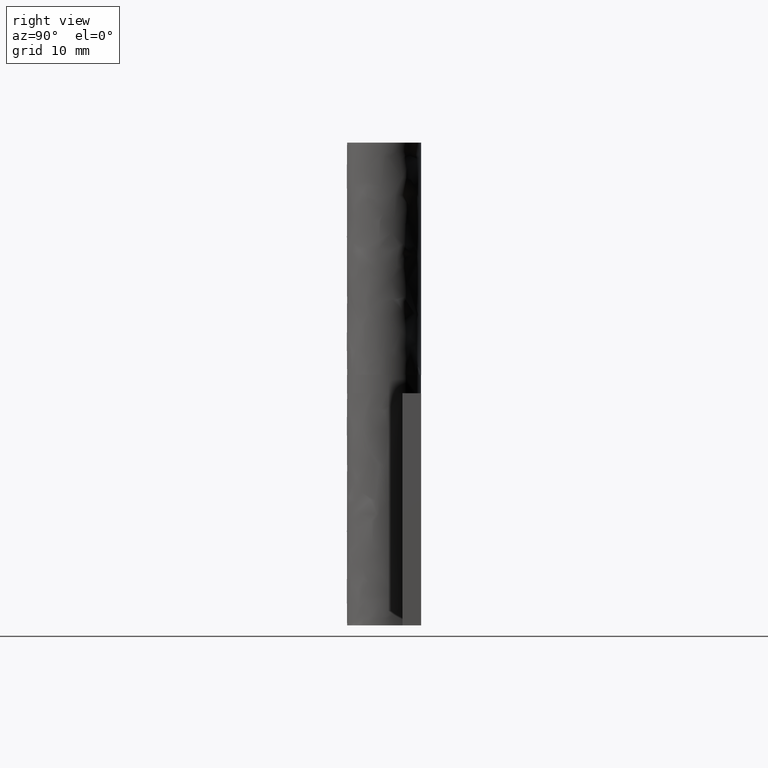
[diagram: clean part render]
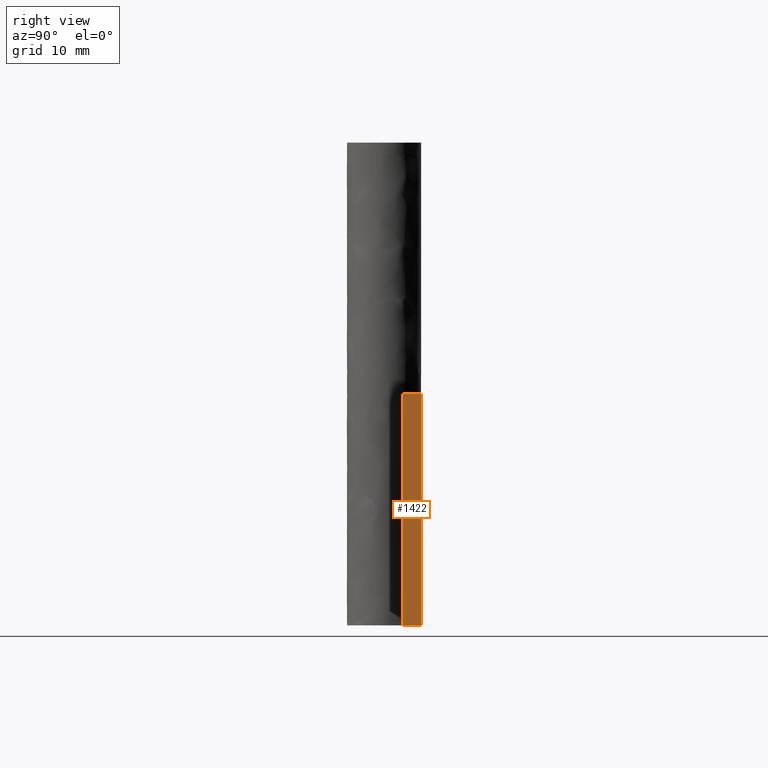
[diagram: same view with one face highlighted and labeled with its STEP entity id]
A machine part, right view. The second image highlights one B-rep face of the part: STEP entity #1422.
In plain terms, the highlighted face is a freeform B-spline surface patch.
Its self-contained STEP definition (entity closure, byte-faithful):
#1219=CARTESIAN_POINT('',(43.999984999999803,3.0,0.0));
#1220=VERTEX_POINT('',#1219);
#1249=CARTESIAN_POINT('',(43.999984999999803,6.0,0.0));
#1250=VERTEX_POINT('',#1249);
#1256=CARTESIAN_POINT('',(43.999984999999803,6.0,0.0));
#1257=CARTESIAN_POINT('',(43.999984999999803,3.0,0.0));
#1258=QUASI_UNIFORM_CURVE('',1,(#1256,#1257),.UNSPECIFIED.,.F.,.U.);
#1259=EDGE_CURVE('',#1250,#1220,#1258,.T.);
#1271=CARTESIAN_POINT('',(43.999984999999803,6.0,37.500000000000000));
#1272=VERTEX_POINT('',#1271);
#1327=CARTESIAN_POINT('',(43.999984999999803,3.0,37.500000000000000));
#1328=VERTEX_POINT('',#1327);
#1334=CARTESIAN_POINT('',(43.999984999999803,6.0,37.500000000000000));
#1335=CARTESIAN_POINT('',(43.999984999999803,3.0,37.500000000000000));
#1336=QUASI_UNIFORM_CURVE('',1,(#1334,#1335),.UNSPECIFIED.,.F.,.U.);
#1337=EDGE_CURVE('',#1272,#1328,#1336,.T.);
#1392=CARTESIAN_POINT('',(43.999984999999803,3.0,37.500000000000000));
#1393=CARTESIAN_POINT('',(43.999984999999803,3.0,0.0));
#1394=QUASI_UNIFORM_CURVE('',1,(#1392,#1393),.UNSPECIFIED.,.F.,.U.);
#1395=EDGE_CURVE('',#1328,#1220,#1394,.T.);
#1407=CARTESIAN_POINT('',(43.999984999999803,2.850150005814581,39.373124927317733));
#1408=CARTESIAN_POINT('',(43.999984999999803,2.850150005814581,-1.873125933146104));
#1409=CARTESIAN_POINT('',(43.999984999999803,6.149850074651689,39.373124927317733));
#1410=CARTESIAN_POINT('',(43.999984999999803,6.149850074651689,-1.873125933146104));
#1411=B_SPLINE_SURFACE_WITH_KNOTS('',1,1,((#1407,#1409),(#1408,#1410)),.UNSPECIFIED.,.F.,.F.,.U.,(2,2),(2,2),(0.0,41.246250860463832),(0.0,3.299700068837108),.UNSPECIFIED.);
#1412=ORIENTED_EDGE('',*,*,#1259,.F.);
#1413=CARTESIAN_POINT('',(43.999984999999803,6.0,37.500000000000000));
#1414=CARTESIAN_POINT('',(43.999984999999803,6.0,0.0));
#1415=QUASI_UNIFORM_CURVE('',1,(#1413,#1414),.UNSPECIFIED.,.F.,.U.);
#1416=EDGE_CURVE('',#1272,#1250,#1415,.T.);
#1417=ORIENTED_EDGE('',*,*,#1416,.F.);
#1418=ORIENTED_EDGE('',*,*,#1337,.T.);
#1419=ORIENTED_EDGE('',*,*,#1395,.T.);
#1420=EDGE_LOOP('',(#1412,#1417,#1418,#1419));
#1421=FACE_OUTER_BOUND('',#1420,.T.);
#1422=ADVANCED_FACE('',(#1421),#1411,.T.);